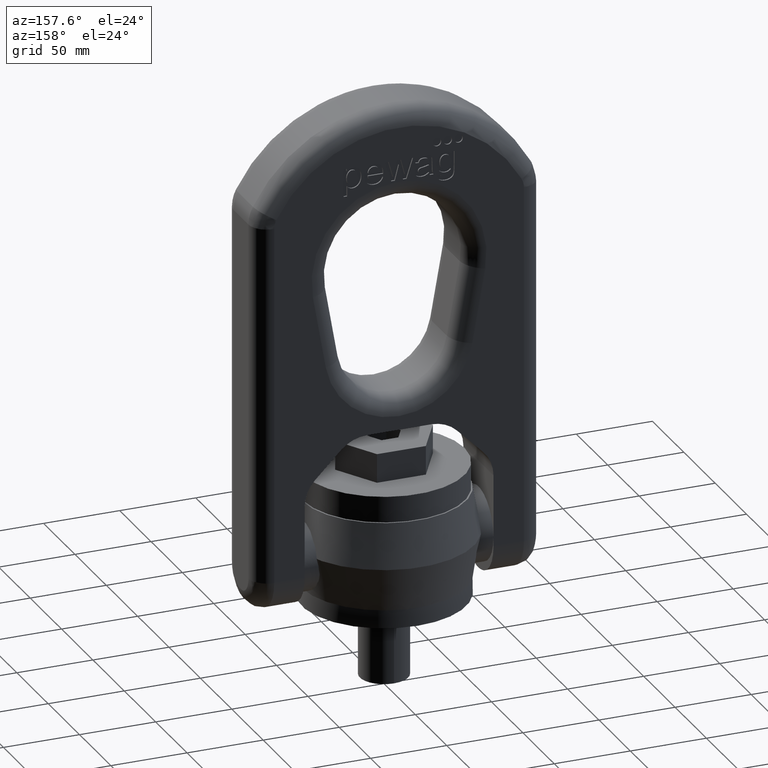
[diagram: clean part render]
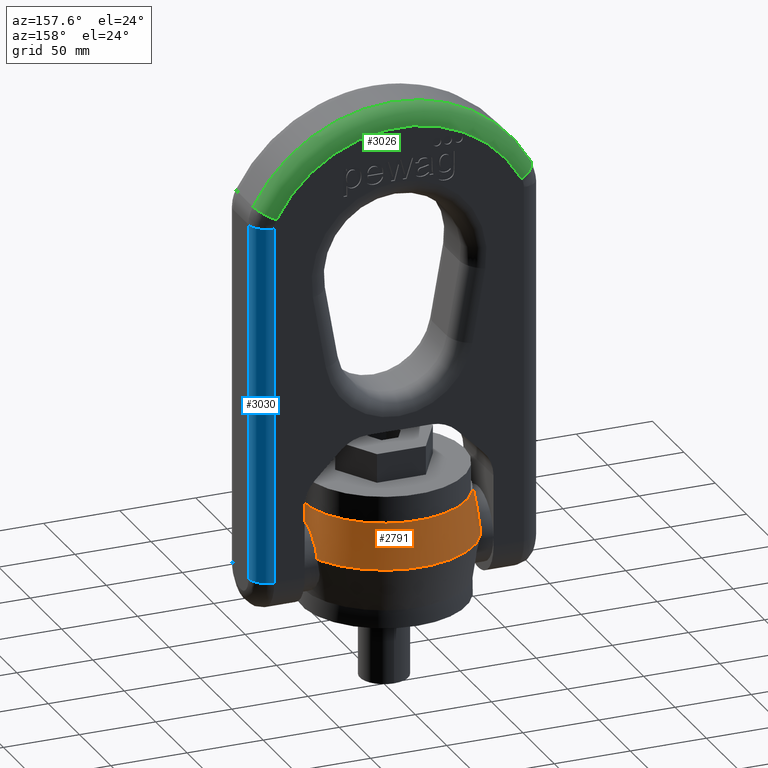
[diagram: same view with three faces highlighted in distinct colors, each labeled with its STEP entity id]
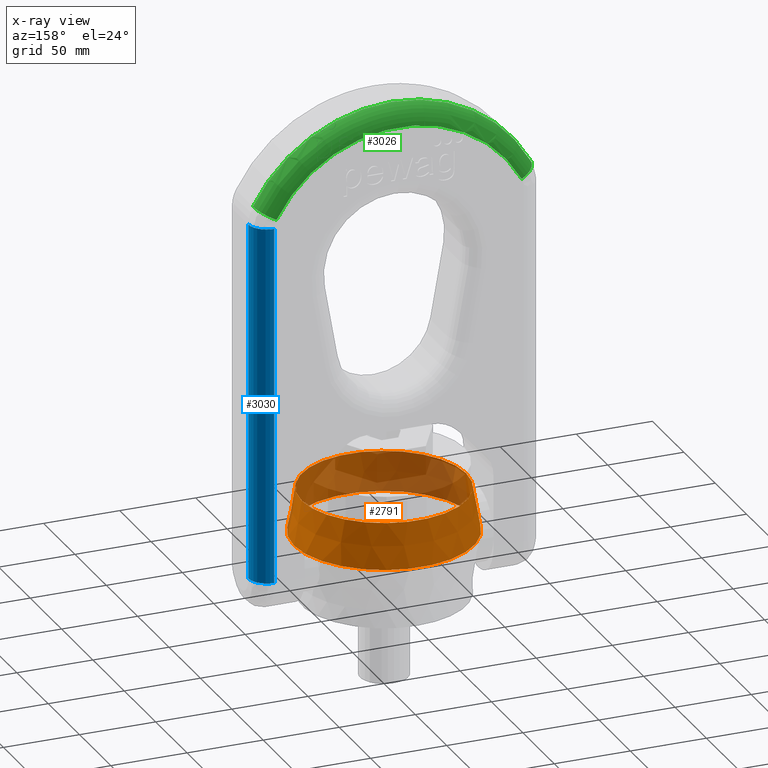
[diagram: x-ray of the same camera — body ghosted, the three highlighted faces saturated]
A machine part, auxiliary view with three faces highlighted in distinct colors.
The next image is the same camera in x-ray (body ghosted, the three faces saturated) — at least one of them is partly hidden behind the body in this view.
Their STEP definitions:

[orange] entity #2791 — the highlighted conical surface has half-angle 10 deg.
#2436=CONICAL_SURFACE('',#5839,59.1134824405455,10.);
#2791=ADVANCED_FACE('',(#3077,#3078),#2436,.T.);
#3077=FACE_BOUND('',#3146,.T.);
#3078=FACE_BOUND('',#3147,.T.);
#3146=EDGE_LOOP('',(#3442));
#3147=EDGE_LOOP('',(#3443));
#3442=ORIENTED_EDGE('',*,*,#5122,.T.);
#3443=ORIENTED_EDGE('',*,*,#5121,.F.);
#4701=VERTEX_POINT('',#6950);
#4702=VERTEX_POINT('',#6953);
#5121=EDGE_CURVE('',#4701,#4701,#5753,.T.);
#5122=EDGE_CURVE('',#4702,#4702,#5754,.T.);
#5753=CIRCLE('',#5836,59.1134824405455);
#5754=CIRCLE('',#5838,54.);
#5836=AXIS2_PLACEMENT_3D('',#6949,#6082,#6083);
#5838=AXIS2_PLACEMENT_3D('',#6952,#6086,#6087);
#5839=AXIS2_PLACEMENT_3D('',#6954,#6088,#6089);
#6082=DIRECTION('',(0.,0.,-1.));
#6083=DIRECTION('',(-1.,0.,0.));
#6086=DIRECTION('',(0.,0.,-1.));
#6087=DIRECTION('',(-1.,0.,0.));
#6088=DIRECTION('',(0.,0.,-1.));
#6089=DIRECTION('',(-1.,0.,1.47359842295154E-16));
#6949=CARTESIAN_POINT('',(0.,0.,41.));
#6950=CARTESIAN_POINT('',(-59.1134824405455,0.,41.));
#6952=CARTESIAN_POINT('',(0.,0.,70.));
#6953=CARTESIAN_POINT('',(-54.,0.,70.));
#6954=CARTESIAN_POINT('',(0.,0.,41.));

[blue] entity #3030 — the highlighted cylindrical surface (edge-blend (fillet) strip) has radius 12 mm, axis along (-0, 0, 1).
#1817=LINE('',#7406,#2125);
#1867=LINE('',#7754,#2175);
#2125=VECTOR('',#6268,1.);
#2175=VECTOR('',#6354,1.);
#2655=FACE_OUTER_BOUND('',#3423,.T.);
#3030=ADVANCED_FACE('',(#2655),#3064,.T.);
#3064=CYLINDRICAL_SURFACE('',#6047,12.);
#3423=EDGE_LOOP('',(#4657,#4658,#4659,#4660));
#4657=ORIENTED_EDGE('',*,*,#5738,.T.);
#4658=ORIENTED_EDGE('',*,*,#5365,.F.);
#4659=ORIENTED_EDGE('',*,*,#5740,.F.);
#4660=ORIENTED_EDGE('',*,*,#5268,.F.);
#4741=VERTEX_POINT('',#7064);
#4832=VERTEX_POINT('',#7405);
#4924=VERTEX_POINT('',#7753);
#4925=VERTEX_POINT('',#7755);
#5268=EDGE_CURVE('',#4832,#4741,#1817,.T.);
#5365=EDGE_CURVE('',#4924,#4925,#1867,.T.);
#5738=EDGE_CURVE('',#4832,#4925,#5816,.T.);
#5740=EDGE_CURVE('',#4741,#4924,#5818,.T.);
#5816=CIRCLE('',#6043,12.);
#5818=CIRCLE('',#6046,12.);
#6043=AXIS2_PLACEMENT_3D('',#9792,#6894,#6895);
#6046=AXIS2_PLACEMENT_3D('',#9811,#6900,#6901);
#6047=AXIS2_PLACEMENT_3D('',#9812,#6902,#6903);
#6268=DIRECTION('',(1.04738021191052E-16,-2.45391833600033E-31,-1.));
#6354=DIRECTION('',(-1.04738021191052E-16,2.45391833600033E-31,1.));
#6894=DIRECTION('',(0.,0.,-1.));
#6895=DIRECTION('',(-1.,0.,0.));
#6900=DIRECTION('',(0.,0.,-1.));
#6901=DIRECTION('',(-1.,0.,0.));
#6902=DIRECTION('',(-1.04738021191052E-16,2.45391833600033E-31,1.));
#6903=DIRECTION('',(1.,0.,0.));
#7064=CARTESIAN_POINT('',(82.,23.9999999999998,29.9999999999999));
#7405=CARTESIAN_POINT('',(82.,23.9999999999998,265.333333333333));
#7406=CARTESIAN_POINT('',(82.,23.9999999999998,29.9999999999999));
#7753=CARTESIAN_POINT('',(94.,11.9999999999998,29.9999999999999));
#7754=CARTESIAN_POINT('',(94.,11.9999999999998,265.333333333333));
#7755=CARTESIAN_POINT('',(94.,11.9999999999998,265.333333333333));
#9792=CARTESIAN_POINT('',(82.,11.9999999999998,265.333333333333));
#9811=CARTESIAN_POINT('',(82.,11.9999999999998,29.9999999999999));
#9812=CARTESIAN_POINT('',(82.,11.9999999999998,227.366666666667));

[green] entity #3026 — the highlighted toroidal blend (fillet) surface has major radius 91.6333 mm and minor (blend) radius 12 mm.
#202=TOROIDAL_SURFACE('',#6041,91.6333333333333,12.);
#2651=FACE_OUTER_BOUND('',#3419,.T.);
#3026=ADVANCED_FACE('',(#2651),#202,.T.);
#3419=EDGE_LOOP('',(#4641,#4642,#4643,#4644));
#4641=ORIENTED_EDGE('',*,*,#5734,.T.);
#4642=ORIENTED_EDGE('',*,*,#5369,.F.);
#4643=ORIENTED_EDGE('',*,*,#5736,.F.);
#4644=ORIENTED_EDGE('',*,*,#5280,.F.);
#4831=VERTEX_POINT('',#7404);
#4841=VERTEX_POINT('',#7426);
#4928=VERTEX_POINT('',#7762);
#4929=VERTEX_POINT('',#7764);
#5280=EDGE_CURVE('',#4841,#4831,#5783,.T.);
#5369=EDGE_CURVE('',#4928,#4929,#5791,.T.);
#5734=EDGE_CURVE('',#4841,#4929,#5812,.T.);
#5736=EDGE_CURVE('',#4831,#4928,#5814,.T.);
#5783=CIRCLE('',#5890,91.6333333333333);
#5791=CIRCLE('',#5904,103.633333333333);
#5812=CIRCLE('',#6037,12.);
#5814=CIRCLE('',#6040,12.);
#5890=AXIS2_PLACEMENT_3D('',#7427,#6285,#6286);
#5904=AXIS2_PLACEMENT_3D('',#7763,#6360,#6361);
#6037=AXIS2_PLACEMENT_3D('',#9754,#6882,#6883);
#6040=AXIS2_PLACEMENT_3D('',#9773,#6888,#6889);
#6041=AXIS2_PLACEMENT_3D('',#9774,#6890,#6891);
#6285=DIRECTION('',(2.34291072916505E-15,1.,0.));
#6286=DIRECTION('',(-1.,2.34746137891369E-15,0.));
#6360=DIRECTION('',(-2.34291072916505E-15,-1.,0.));
#6361=DIRECTION('',(-1.,2.34346690225236E-15,0.));
#6882=DIRECTION('',(0.476768522394306,-1.10274873120557E-15,0.879028882377565));
#6883=DIRECTION('',(0.879028882377565,0.,-0.476768522394306));
#6888=DIRECTION('',(0.476768522394306,-1.10274873120557E-15,-0.879028882377564));
#6889=DIRECTION('',(-0.879028882377564,0.,-0.476768522394306));
#6890=DIRECTION('',(2.34291072916505E-15,1.,0.));
#6891=DIRECTION('',(-1.,2.34346690225236E-15,0.));
#7404=CARTESIAN_POINT('',(80.5483465885308,23.9999999999998,271.054555602065));
#7426=CARTESIAN_POINT('',(-80.5483465885307,24.0000000000002,271.054555602065));
#7427=CARTESIAN_POINT('',(2.81149287499806E-14,24.,227.366666666667));
#7762=CARTESIAN_POINT('',(91.0966931770616,11.9999999999998,276.775777870797));
#7763=CARTESIAN_POINT('',(0.,12.,227.366666666667));
#7764=CARTESIAN_POINT('',(-91.0966931770616,12.0000000000002,276.775777870797));
#9754=CARTESIAN_POINT('',(-80.5483465885308,12.0000000000002,271.054555602065));
#9773=CARTESIAN_POINT('',(80.5483465885308,11.9999999999998,271.054555602065));
#9774=CARTESIAN_POINT('',(0.,12.,227.366666666667));